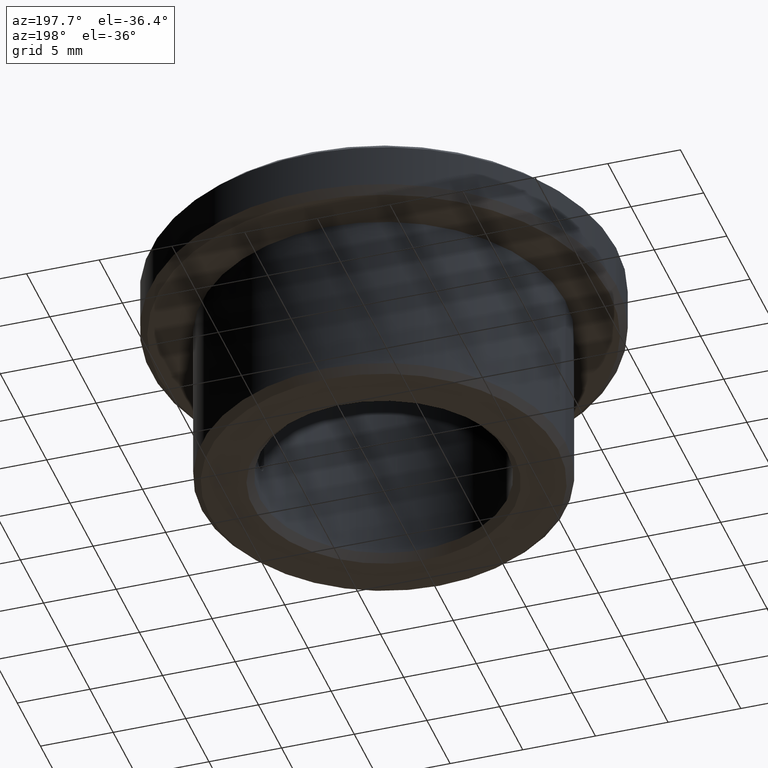
[diagram: clean part render]
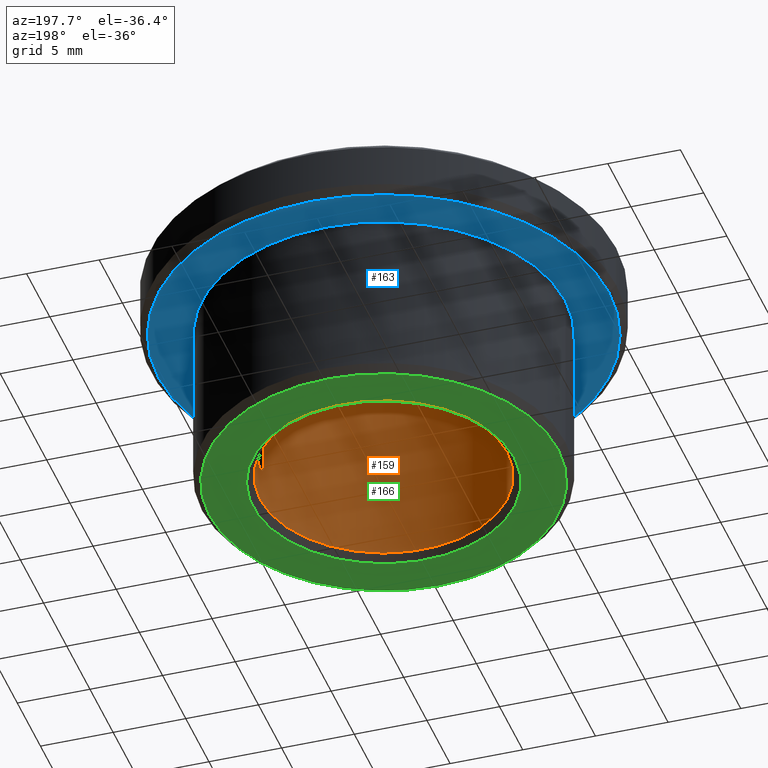
[diagram: same view with three faces highlighted in distinct colors, each labeled with its STEP entity id]
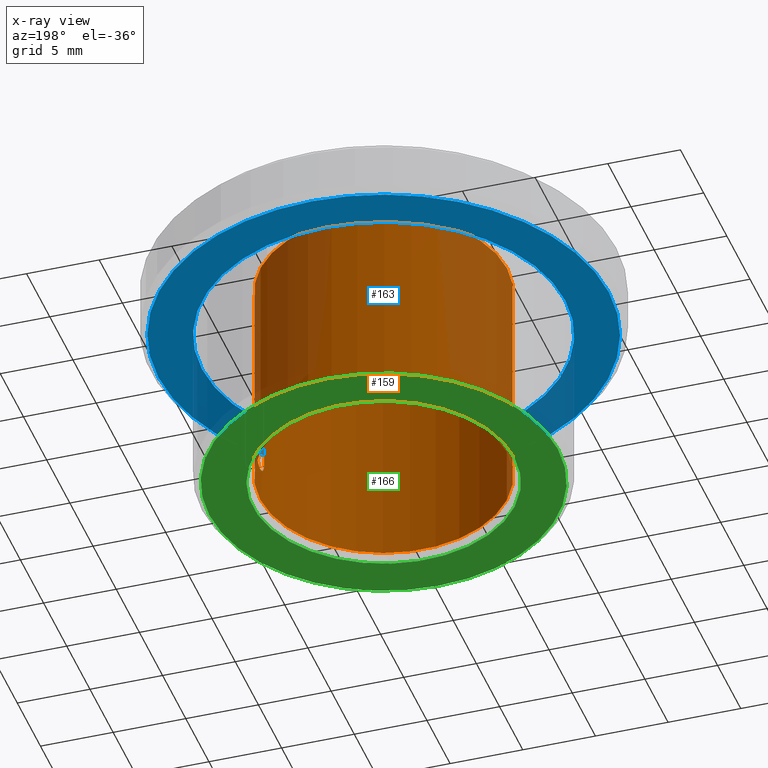
[diagram: x-ray of the same camera — body ghosted, the three highlighted faces saturated]
A machine part, auxiliary view with three faces highlighted in distinct colors.
The next image is the same camera in x-ray (body ghosted, the three faces saturated) — at least one of them is partly hidden behind the body in this view.
Their STEP definitions:

[orange] entity #159 — the highlighted cylindrical surface (bore or boss wall) has radius 8.5 mm, axis along (-0, 0, -1).
#159=ADVANCED_FACE('',(#188,#189,#190),#191,.F.);
#188=FACE_OUTER_BOUND('',#237,.T.);
#189=FACE_OUTER_BOUND('',#238,.T.);
#190=FACE_BOUND('',#239,.T.);
#191=CYLINDRICAL_SURFACE('',#240,0.0085);
#237=EDGE_LOOP('',(#306));
#238=EDGE_LOOP('',(#307));
#239=EDGE_LOOP('',(#308,#309,#310,#311));
#240=AXIS2_PLACEMENT_3D('',#312,#313,#314);
#306=ORIENTED_EDGE('',*,*,#387,.T.);
#307=ORIENTED_EDGE('',*,*,#384,.F.);
#308=ORIENTED_EDGE('',*,*,#389,.T.);
#309=ORIENTED_EDGE('',*,*,#383,.T.);
#310=ORIENTED_EDGE('',*,*,#380,.T.);
#311=ORIENTED_EDGE('',*,*,#377,.T.);
#312=CARTESIAN_POINT('',(0.0,0.0,0.0));
#313=DIRECTION('',(0.0,-6.12323399573677E-017,-1.0));
#314=DIRECTION('',(0.0,1.0,-6.12323399573677E-017));
#377=EDGE_CURVE('',#400,#404,#406,.T.);
#380=EDGE_CURVE('',#408,#400,#411,.T.);
#383=EDGE_CURVE('',#413,#408,#416,.T.);
#384=EDGE_CURVE('',#417,#417,#418,.T.);
#387=EDGE_CURVE('',#423,#423,#424,.T.);
#389=EDGE_CURVE('',#404,#413,#427,.F.);
#400=VERTEX_POINT('',#444);
#404=VERTEX_POINT('',#449);
#406=B_SPLINE_CURVE_WITH_KNOTS('',3,(#452,#453,#454,#455,#456,#457,#458,#459,#460,#461,#462,#463,#464,#465),.UNSPECIFIED.,.F.,.F.,(4,2,2,2,2,2,4),(0.0,0.000293183881928983,0.000586367763857965,0.00117273552771593,0.00146591940964491,0.0017591032915739,0.00234547105543186),.UNSPECIFIED.);
#408=VERTEX_POINT('',#467);
#411=LINE('',#472,#473);
#413=VERTEX_POINT('',#475);
#416=B_SPLINE_CURVE_WITH_KNOTS('',3,(#479,#480,#481,#482,#483,#484,#485,#486,#487,#488,#489,#490,#491,#492),.UNSPECIFIED.,.F.,.F.,(4,2,2,2,2,2,4),(0.0,0.000293183881928981,0.000586367763857962,0.00117273552771592,0.0014659194096449,0.00175910329157388,0.00234547105543185),.UNSPECIFIED.);
#417=VERTEX_POINT('',#493);
#418=CIRCLE('',#494,0.0085);
#423=VERTEX_POINT('',#499);
#424=CIRCLE('',#500,0.0085);
#427=LINE('',#503,#504);
#444=CARTESIAN_POINT('',(-0.000749999999999929,-0.00846684711093806,0.00375));
#449=CARTESIAN_POINT('',(0.000750000000000071,-0.00846684711093805,0.00375));
#452=CARTESIAN_POINT('',(-0.000749999999999929,-0.00846684711093806,0.00375));
#453=CARTESIAN_POINT('',(-0.000749999999999929,-0.00846684711093806,0.0036508611872936));
#454=CARTESIAN_POINT('',(-0.000730468172787895,-0.00846863878928428,0.00355358360969306));
#455=CARTESIAN_POINT('',(-0.00065517630374202,-0.00847479620438399,0.00337196936519344));
#456=CARTESIAN_POINT('',(-0.000599468761819626,-0.00847911772780836,0.00328880595669005));
#457=CARTESIAN_POINT('',(-0.000392022436605981,-0.00849208568980102,0.0030813675321028));
#458=CARTESIAN_POINT('',(-0.000196256689362259,-0.00849998786390899,0.00300013754239835));
#459=CARTESIAN_POINT('',(9.73388534999804E-005,-0.00850000604360251,0.00299993150582145));
#460=CARTESIAN_POINT('',(0.000195662172419677,-0.00849823366284435,0.0030193322233774));
#461=CARTESIAN_POINT('',(0.000377317798814342,-0.00849210753304,0.00309441601284921));
#462=CARTESIAN_POINT('',(0.000459907177949217,-0.00848783908855336,0.00314934407798534));
#463=CARTESIAN_POINT('',(0.000670075378625282,-0.00847470984806996,0.00335922182394353));
#464=CARTESIAN_POINT('',(0.000750000000000071,-0.00846684711093805,0.00355172269203866));
#465=CARTESIAN_POINT('',(0.000750000000000071,-0.00846684711093805,0.00375));
#467=CARTESIAN_POINT('',(-0.00074999999999993,-0.00846684711093806,0.01225));
#472=CARTESIAN_POINT('',(-0.000749999999999929,-0.00846684711093806,4.41912942606223E-019));
#473=VECTOR('',#528,1.0);
#475=CARTESIAN_POINT('',(0.000750000000000071,-0.00846684711093805,0.01225));
#479=CARTESIAN_POINT('',(0.000750000000000072,-0.00846684711093805,0.01225));
#480=CARTESIAN_POINT('',(0.000750000000000072,-0.00846684711093805,0.0123491388127064));
#481=CARTESIAN_POINT('',(0.000730468172788034,-0.00846863878928426,0.0124464163903069));
#482=CARTESIAN_POINT('',(0.00065517630374216,-0.00847479620438397,0.0126280306348066));
#483=CARTESIAN_POINT('',(0.000599468761819761,-0.00847911772780834,0.01271119404331));
#484=CARTESIAN_POINT('',(0.000392022436606129,-0.00849208568980101,0.0129186324678972));
#485=CARTESIAN_POINT('',(0.000196256689362385,-0.00849998786390899,0.0129998624576016));
#486=CARTESIAN_POINT('',(-9.73388534998256E-005,-0.00850000604360252,0.0130000684941786));
#487=CARTESIAN_POINT('',(-0.000195662172419537,-0.00849823366284435,0.0129806677766226));
#488=CARTESIAN_POINT('',(-0.000377317798814187,-0.00849210753304001,0.0129055839871508));
#489=CARTESIAN_POINT('',(-0.000459907177949074,-0.00848783908855336,0.0128506559220147));
#490=CARTESIAN_POINT('',(-0.000670075378625129,-0.00847470984806998,0.0126407781760565));
#491=CARTESIAN_POINT('',(-0.00074999999999993,-0.00846684711093806,0.0124482773079613));
#492=CARTESIAN_POINT('',(-0.00074999999999993,-0.00846684711093806,0.01225));
#493=CARTESIAN_POINT('',(0.0,0.0085,0.0155));
#494=AXIS2_PLACEMENT_3D('',#533,#534,#535);
#499=CARTESIAN_POINT('',(0.0,0.0085,0.0005));
#500=AXIS2_PLACEMENT_3D('',#542,#543,#544);
#503=CARTESIAN_POINT('',(0.000750000000000071,-0.00846684711093805,5.18444860664015E-019));
#504=VECTOR('',#548,1.0);
#528=DIRECTION('',(0.0,-6.12323399573677E-017,-1.0));
#533=CARTESIAN_POINT('',(0.0,0.0,0.0155));
#534=DIRECTION('',(0.0,-6.12323399573677E-017,-1.0));
#535=DIRECTION('',(0.0,1.0,-6.12323399573677E-017));
#542=CARTESIAN_POINT('',(0.0,0.0,0.0005));
#543=DIRECTION('',(0.0,-6.12323399573677E-017,-1.0));
#544=DIRECTION('',(0.0,1.0,-6.12323399573677E-017));
#548=DIRECTION('',(0.0,-6.12323399573677E-017,-1.0));

[blue] entity #163 — the highlighted planar face has unit normal (-0, 0, -1).
#163=ADVANCED_FACE('',(#201,#202),#203,.T.);
#201=FACE_OUTER_BOUND('',#250,.T.);
#202=FACE_BOUND('',#251,.T.);
#203=PLANE('',#252);
#250=EDGE_LOOP('',(#330));
#251=EDGE_LOOP('',(#331));
#252=AXIS2_PLACEMENT_3D('',#332,#333,#334);
#330=ORIENTED_EDGE('',*,*,#392,.T.);
#331=ORIENTED_EDGE('',*,*,#393,.F.);
#332=CARTESIAN_POINT('',(0.0125,0.0,0.012));
#333=DIRECTION('',(0.0,-6.12323399573677E-017,-1.0));
#334=DIRECTION('',(0.0,1.0,-6.12323399573677E-017));
#392=EDGE_CURVE('',#432,#432,#433,.T.);
#393=EDGE_CURVE('',#434,#434,#435,.T.);
#432=VERTEX_POINT('',#509);
#433=CIRCLE('',#510,0.0155);
#434=VERTEX_POINT('',#511);
#435=CIRCLE('',#512,0.0125);
#509=CARTESIAN_POINT('',(0.0,0.0155,0.012));
#510=AXIS2_PLACEMENT_3D('',#555,#556,#557);
#511=CARTESIAN_POINT('',(0.0,0.0125,0.012));
#512=AXIS2_PLACEMENT_3D('',#558,#559,#560);
#555=CARTESIAN_POINT('',(0.0,0.0,0.012));
#556=DIRECTION('',(0.0,-6.12323399573677E-017,-1.0));
#557=DIRECTION('',(0.0,1.0,-6.12323399573677E-017));
#558=CARTESIAN_POINT('',(0.0,0.0,0.012));
#559=DIRECTION('',(0.0,-6.12323399573677E-017,-1.0));
#560=DIRECTION('',(0.0,1.0,-6.12323399573677E-017));

[green] entity #166 — the highlighted planar face has unit normal (-0, 0, -1).
#166=ADVANCED_FACE('',(#210,#211),#212,.T.);
#210=FACE_OUTER_BOUND('',#259,.T.);
#211=FACE_BOUND('',#260,.T.);
#212=PLANE('',#261);
#259=EDGE_LOOP('',(#345));
#260=EDGE_LOOP('',(#346));
#261=AXIS2_PLACEMENT_3D('',#347,#348,#349);
#345=ORIENTED_EDGE('',*,*,#395,.T.);
#346=ORIENTED_EDGE('',*,*,#386,.F.);
#347=CARTESIAN_POINT('',(0.009,0.0,0.0));
#348=DIRECTION('',(0.0,-6.12323399573677E-017,-1.0));
#349=DIRECTION('',(0.0,1.0,-6.12323399573677E-017));
#386=EDGE_CURVE('',#421,#421,#422,.T.);
#395=EDGE_CURVE('',#438,#438,#439,.T.);
#421=VERTEX_POINT('',#497);
#422=CIRCLE('',#498,0.009);
#438=VERTEX_POINT('',#515);
#439=CIRCLE('',#516,0.012);
#497=CARTESIAN_POINT('',(0.0,0.009,-5.51091059616309E-019));
#498=AXIS2_PLACEMENT_3D('',#539,#540,#541);
#515=CARTESIAN_POINT('',(0.0,0.012,-7.34788079488412E-019));
#516=AXIS2_PLACEMENT_3D('',#564,#565,#566);
#539=CARTESIAN_POINT('',(0.0,0.0,0.0));
#540=DIRECTION('',(0.0,-6.12323399573677E-017,-1.0));
#541=DIRECTION('',(0.0,1.0,-6.12323399573677E-017));
#564=CARTESIAN_POINT('',(0.0,0.0,0.0));
#565=DIRECTION('',(0.0,-6.12323399573677E-017,-1.0));
#566=DIRECTION('',(0.0,1.0,-6.12323399573677E-017));